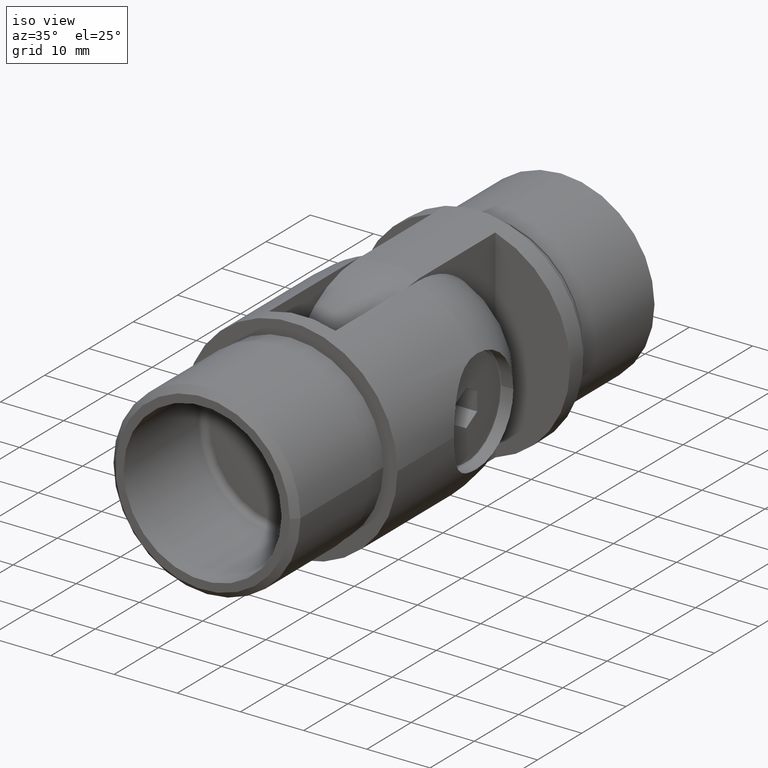
[diagram: clean part render]
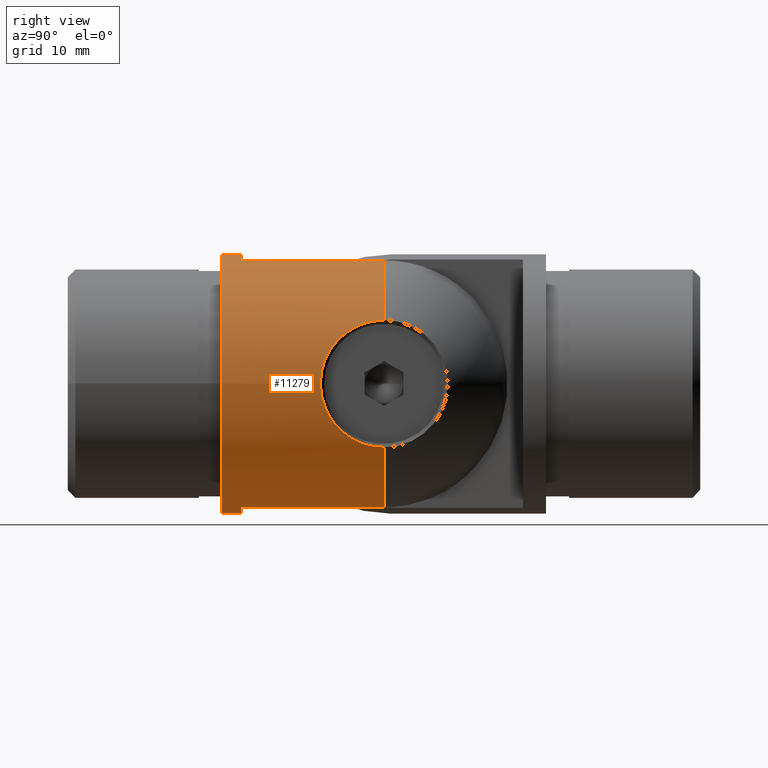
[diagram: tour spotlight — one face highlighted and labeled with its STEP entity id]
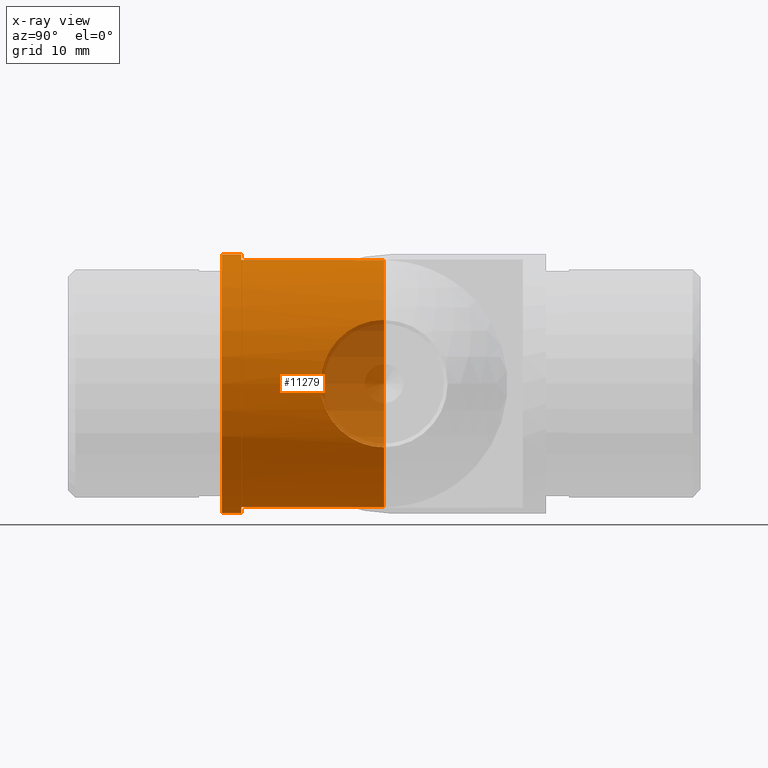
[diagram: x-ray of the same camera — body ghosted, this tour face saturated]
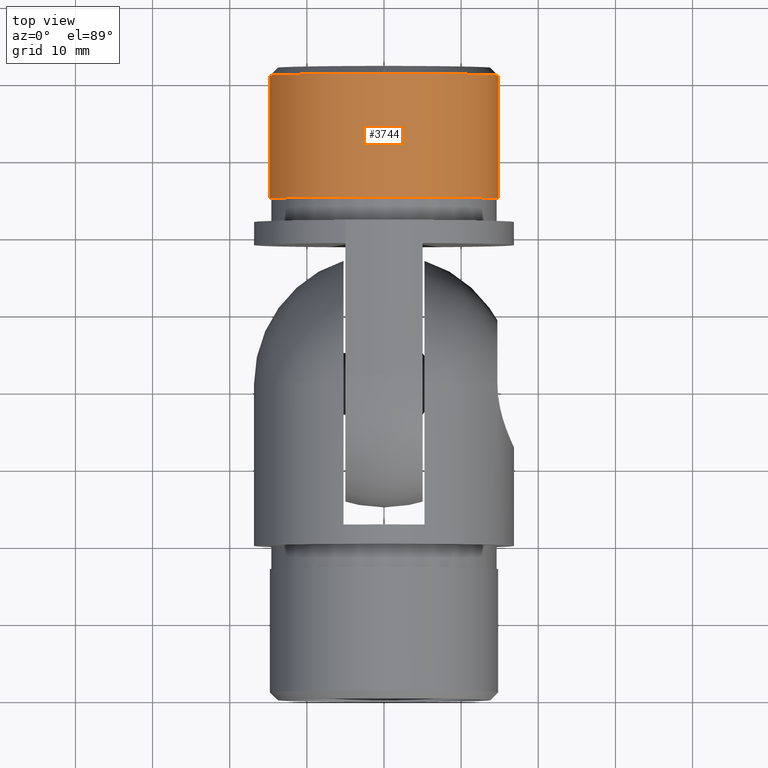
[diagram: tour spotlight — one face highlighted and labeled with its STEP entity id]
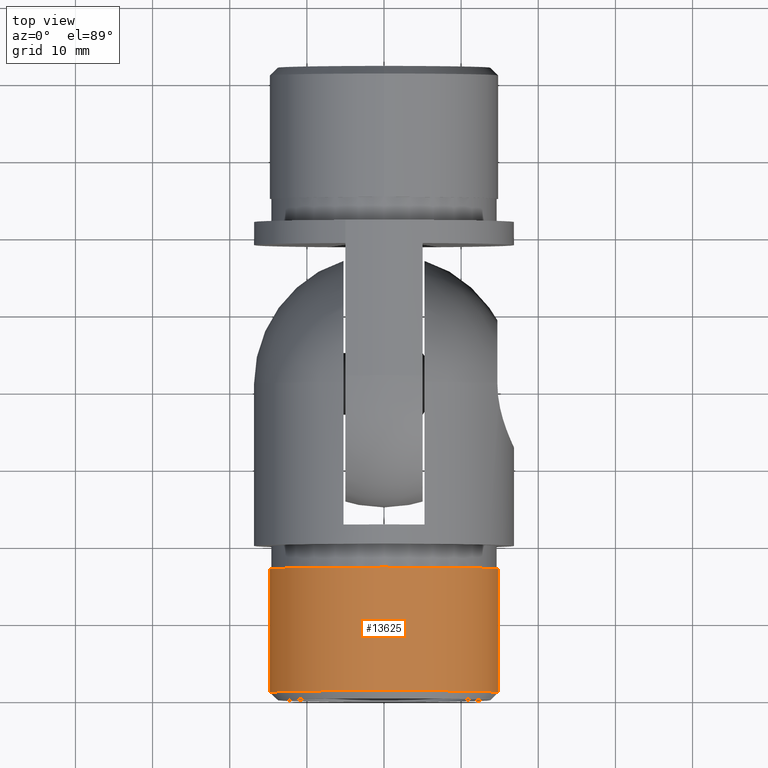
[diagram: tour spotlight — one face highlighted and labeled with its STEP entity id]
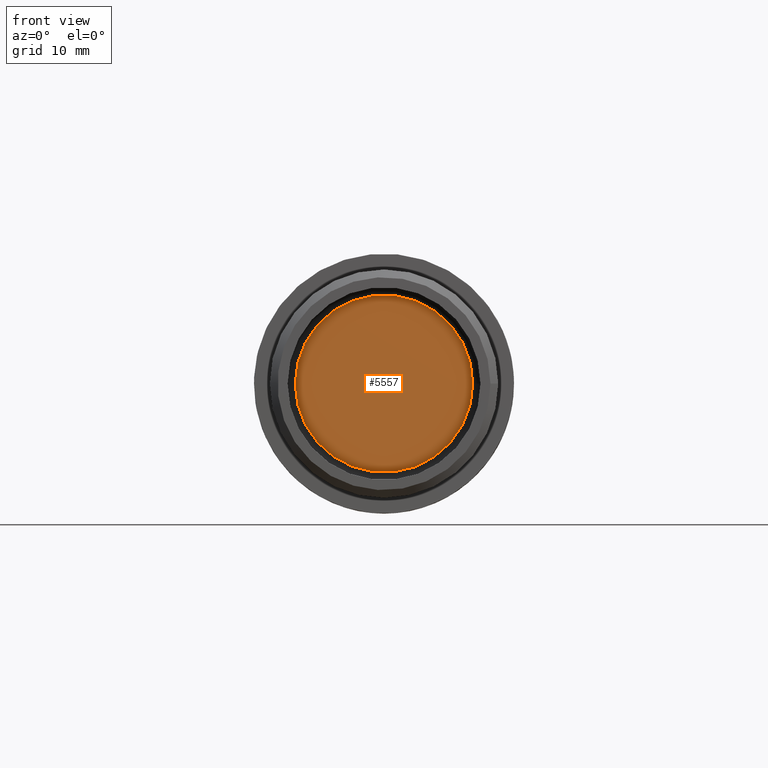
[diagram: tour spotlight — one face highlighted and labeled with its STEP entity id]
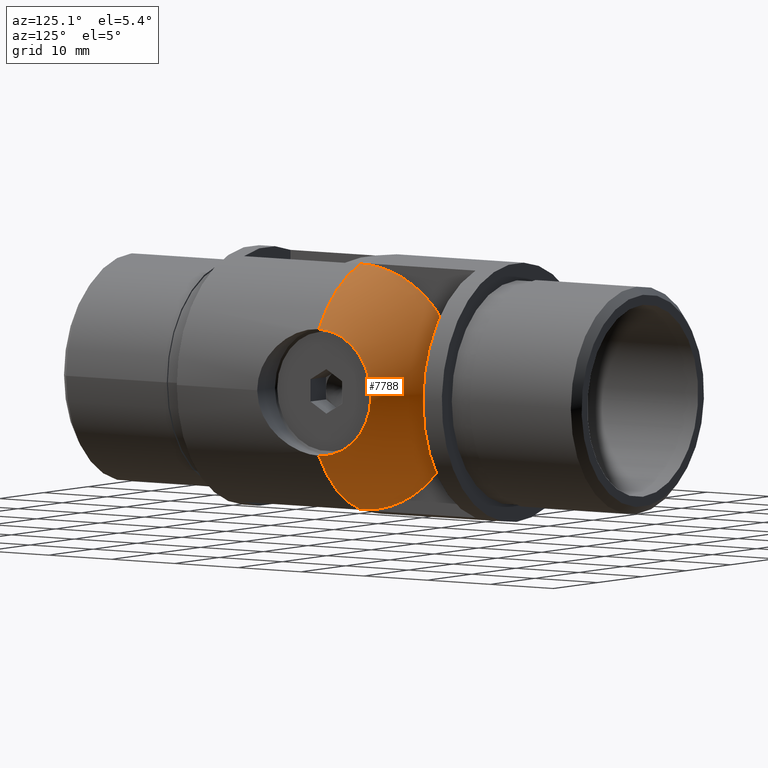
[diagram: tour spotlight — one face highlighted and labeled with its STEP entity id]
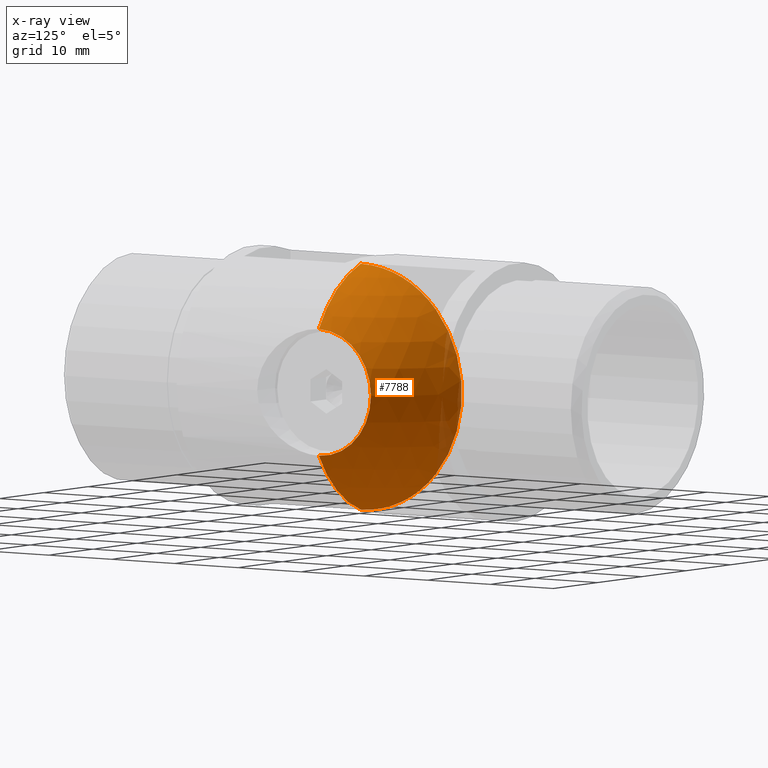
[diagram: x-ray of the same camera — body ghosted, this tour face saturated]
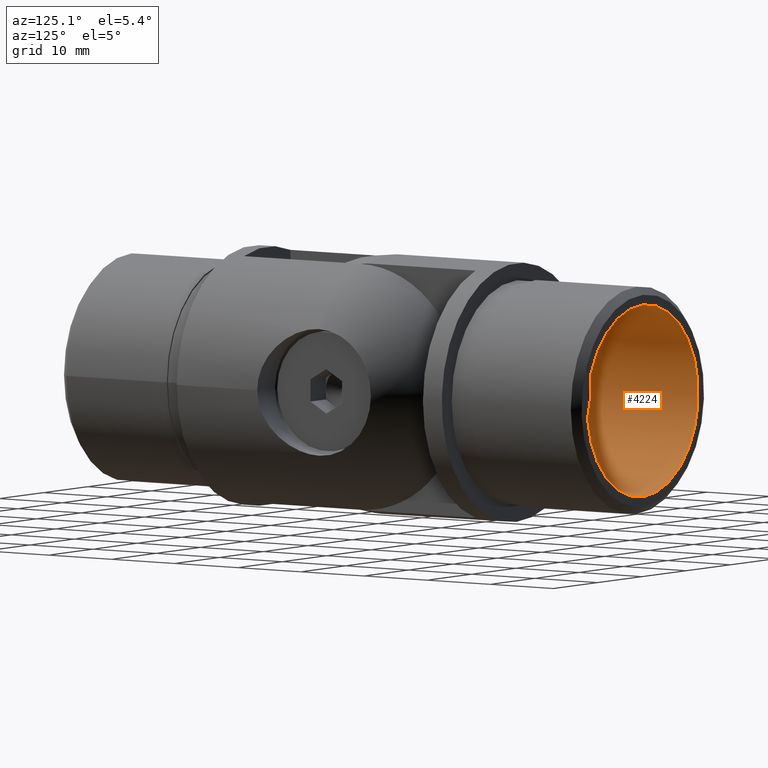
[diagram: tour spotlight — one face highlighted and labeled with its STEP entity id]
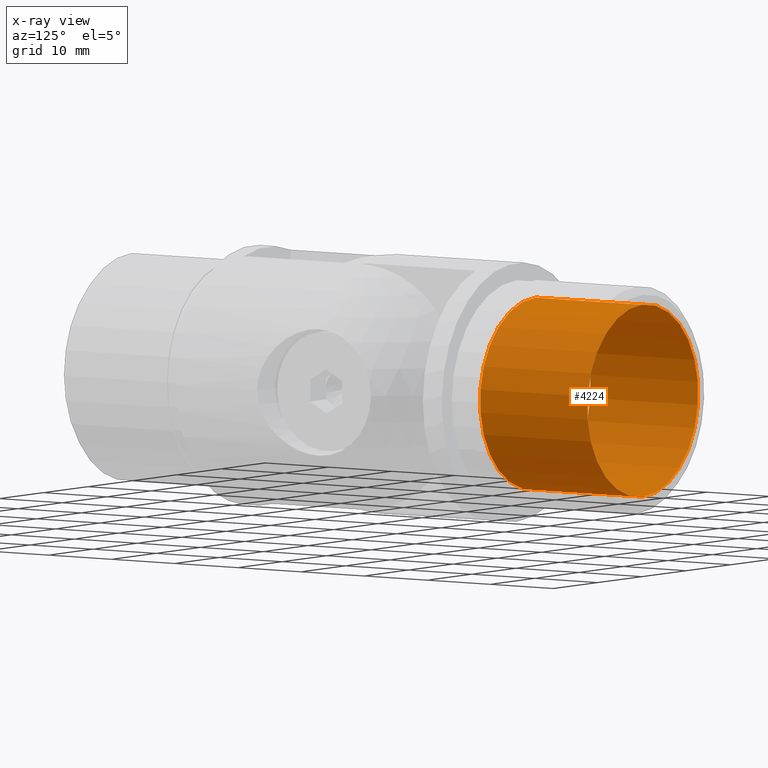
[diagram: x-ray of the same camera — body ghosted, this tour face saturated]
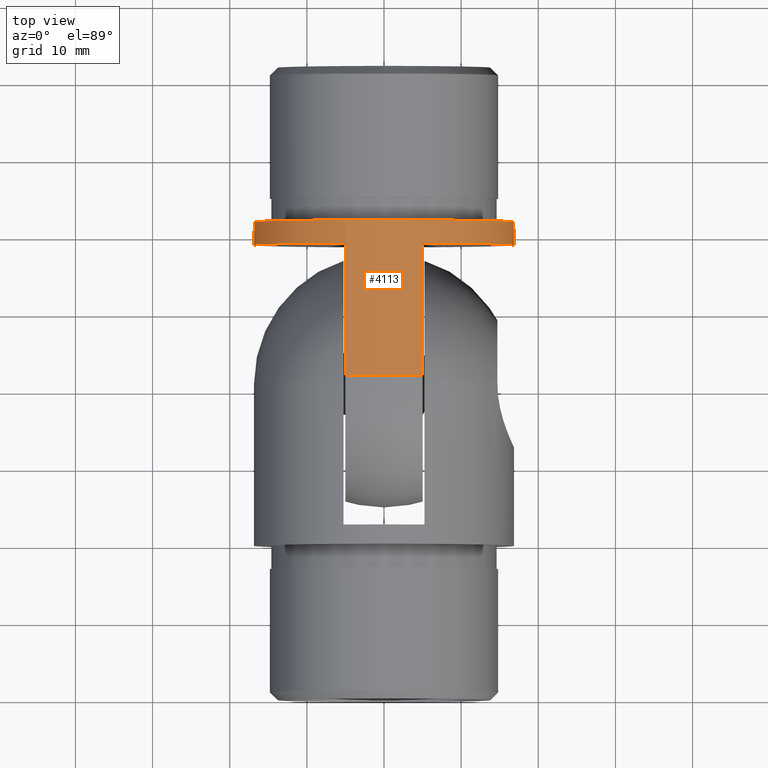
[diagram: tour spotlight — one face highlighted and labeled with its STEP entity id]
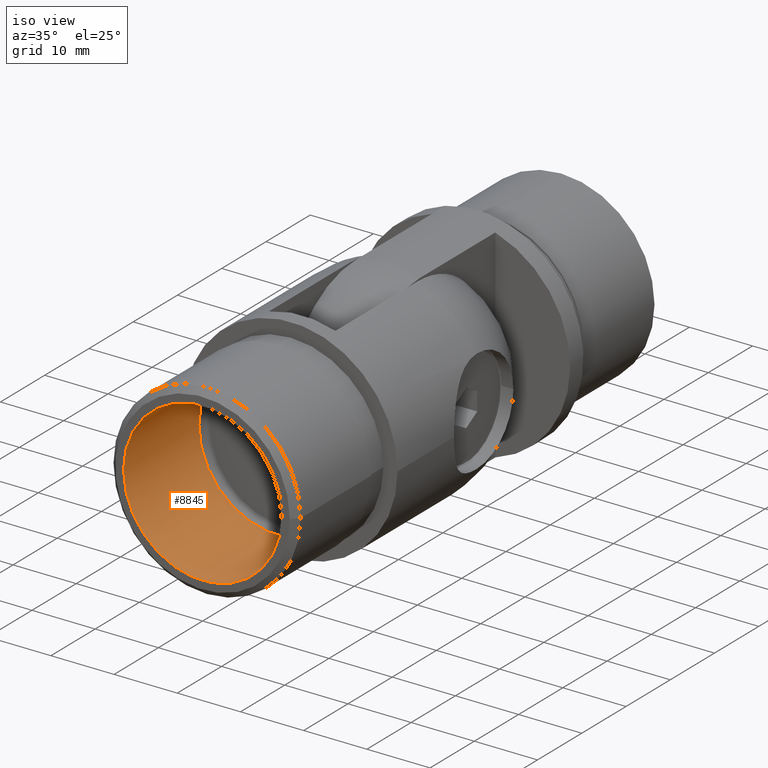
[diagram: tour spotlight — one face highlighted and labeled with its STEP entity id]
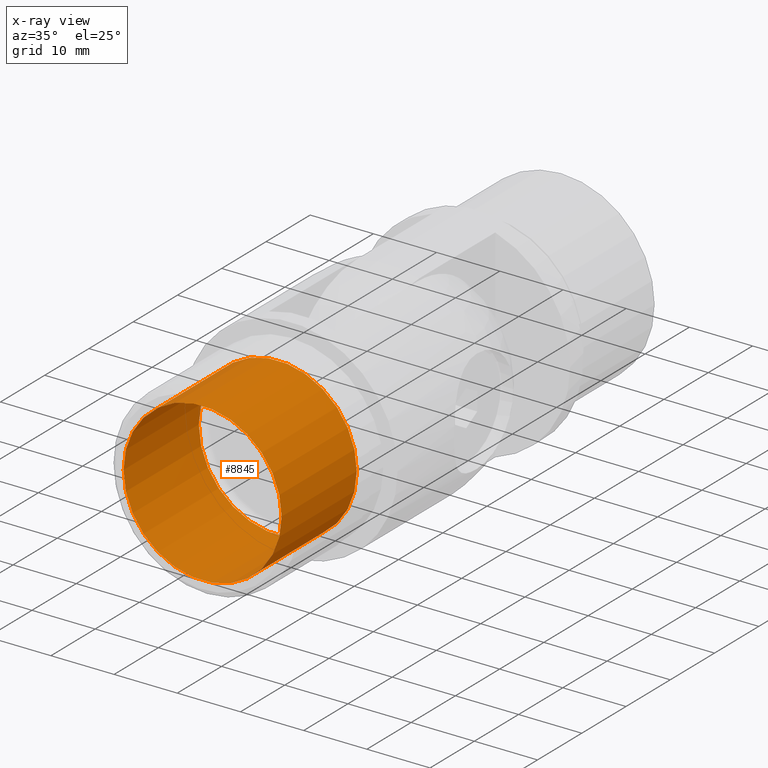
[diagram: x-ray of the same camera — body ghosted, this tour face saturated]
A machine part: a face-by-face anatomy tour. The part has 318 B-rep faces; the first image is the clean iso view, then the 8 largest visible faces are spotlighted one at a time (largest first), each with its STEP entity span.

Face 1 — right view, entity #11279. An x-ray twin of the same camera follows (body ghosted, this face saturated) — the face is partly hidden behind the body. In plain terms, the highlighted cylindrical surface (bore or boss wall) has radius 16.85 mm, axis along (0, -1, 0).
Definition (entity closure, byte-faithful):
#243 = ORIENTED_EDGE ( 'NONE', *, *, #8175, .T. ) ;
#338 = VERTEX_POINT ( 'NONE', #5186 ) ;
#429 = CARTESIAN_POINT ( 'NONE',  ( 5.250000000000005300, 2.499999999999998700, 16.01124604770034000 ) ) ;
#519 = VERTEX_POINT ( 'NONE', #6442 ) ;
#637 = CARTESIAN_POINT ( 'NONE',  ( 16.14508363682496000, 14.30506703001841900, 4.828273553303899000 ) ) ;
#689 = CARTESIAN_POINT ( 'NONE',  ( 14.72362379266294500, 19.90208983419495700, 8.194656244266893100 ) ) ;
#714 = EDGE_CURVE ( 'NONE', #14027, #14027, #6880, .T. ) ;
#743 = CARTESIAN_POINT ( 'NONE',  ( 16.74556580712604200, 12.96531382043688300, -1.892206595810190100 ) ) ;
#795 = CARTESIAN_POINT ( 'NONE',  ( 16.81707660874949200, 12.81741923378706200, -1.087967247931676200 ) ) ;
#848 = CARTESIAN_POINT ( 'NONE',  ( 14.81350262179996200, 19.08906397046251200, -8.030350724648151600 ) ) ;
#939 = FACE_OUTER_BOUND ( 'NONE', #3668, .T. ) ;
#1079 = CARTESIAN_POINT ( 'NONE',  ( -1.426867208517787700E-015, 20.99999999999999600, 0.0000000000000000000 ) ) ;
#1729 = EDGE_CURVE ( 'NONE', #519, #6750, #3152, .T. ) ;
#1778 = VECTOR ( 'NONE', #8897, 1000.000000000000000 ) ;
#1795 = CIRCLE ( 'NONE', #2910, 16.84999999999999800 ) ;
#1816 = CARTESIAN_POINT ( 'NONE',  ( 14.69217478796110200, 20.44500301982686000, -8.250000000000000000 ) ) ;
#1872 = CARTESIAN_POINT ( 'NONE',  ( 15.26207138894459300, 16.84659199073418600, 7.148309923767489400 ) ) ;
#1978 = CARTESIAN_POINT ( 'NONE',  ( 15.33008752875653400, 16.61860376696483900, -6.995549522746566500 ) ) ;
#2029 = CARTESIAN_POINT ( 'NONE',  ( 15.87537261602767600, 14.98354541385479000, 5.651083098628559400 ) ) ;
#2164 = VECTOR ( 'NONE', #5998, 1000.000000000000000 ) ;
#2165 = CARTESIAN_POINT ( 'NONE',  ( -1.426867208517787700E-015, 20.99999999999999600, 0.0000000000000000000 ) ) ;
#2297 = CARTESIAN_POINT ( 'NONE',  ( -5.249999999999995600, -6.830473686658673000E-016, 16.01124604770034300 ) ) ;
#2479 = EDGE_CURVE ( 'NONE', #519, #8321, #3731, .T. ) ;
#2767 = DIRECTION ( 'NONE',  ( -6.794605754846609300E-017, 1.000000000000000000, 0.0000000000000000000 ) ) ;
#2830 = DIRECTION ( 'NONE',  ( 6.794605754846609300E-017, -1.000000000000000000, -0.0000000000000000000 ) ) ;
#2910 = AXIS2_PLACEMENT_3D ( 'NONE', #14015, #4459, #5682 ) ;
#2995 = CARTESIAN_POINT ( 'NONE',  ( -5.249999999999997300, 20.99999999999999600, -16.01124604770034300 ) ) ;
#3021 = CARTESIAN_POINT ( 'NONE',  ( 15.66902844082933700, 15.54291722700255500, -6.209943191397799800 ) ) ;
#3070 = CARTESIAN_POINT ( 'NONE',  ( 16.33467248971762900, 13.85611221559087400, 4.161103127307805000 ) ) ;
#3111 = CARTESIAN_POINT ( 'NONE',  ( -5.249999999999995600, 2.500000000000000900, -16.01124604770034300 ) ) ;
#3152 = CIRCLE ( 'NONE', #4920, 16.84999999999999800 ) ;
#3170 = CARTESIAN_POINT ( 'NONE',  ( 15.94399454587038400, 14.80523360369779500, 5.455112903733488700 ) ) ;
#3225 = CARTESIAN_POINT ( 'NONE',  ( 15.13918043811689900, 17.31621232909035200, 7.401490295323931400 ) ) ;
#3245 = DIRECTION ( 'NONE',  ( 6.794605754846609300E-017, -1.000000000000000000, -0.0000000000000000000 ) ) ;
#3668 = EDGE_LOOP ( 'NONE', ( #4583, #6660, #9772, #13776, #5337, #243, #4243, #13108, #6877, #6192 ) ) ;
#3731 = B_SPLINE_CURVE_WITH_KNOTS ( 'NONE', 3,
 ( #4206, #11366, #689, #7792, #8952, #3225, #1872, #12510, #10168, #10275, #10221, #2029, #3170, #7894, #637, #3070, #4368, #5424, #11466, #12464, #12666, #11313, #6614, #7841, #6760, #795, #13710, #743, #4259, #13870, #9005, #5531, #13658, #12563, #15083, #6663, #7747, #3021, #9059, #1978, #12613, #14921, #8903, #5475, #14869, #7946, #848, #13817, #1816, #15030 ),
 .UNSPECIFIED., .F., .F.,
 ( 4, 2, 2, 2, 2, 2, 2, 2, 2, 2, 2, 2, 2, 2, 2, 2, 2, 2, 2, 2, 2, 2, 2, 2, 4 ),
 ( 0.0000000000000000000, 0.001637828408831435700, 0.003275656817662871500, 0.004913485226494308100, 0.005732399430910029900, 0.006551313635325756000, 0.007370227839741483800, 0.008189142044157209100, 0.009826970452988661300, 0.01064588465740438900, 0.01146479886182011700, 0.01310262727065156800, 0.01392154147506729500, 0.01474045567948302100, 0.01555936988389874600, 0.01637828408831447400, 0.01801611249714592900, 0.01883502670156165400, 0.01965394090597737500, 0.02129176931480882300, 0.02211068351922454800, 0.02292959772364027200, 0.02374851192805599700, 0.02456742613247172100, 0.02620525454130317700 ),
 .UNSPECIFIED. ) ;
#3761 = CIRCLE ( 'NONE', #10766, 16.84999999999999800 ) ;
#3795 = CARTESIAN_POINT ( 'NONE',  ( 5.250000000000002700, 20.99999999999999600, 16.01124604770034300 ) ) ;
#4160 = CIRCLE ( 'NONE', #6413, 16.84999999999999800 ) ;
#4171 = CARTESIAN_POINT ( 'NONE',  ( -1.698651438711652400E-016, 2.500000000000000000, 0.0000000000000000000 ) ) ;
#4206 = CARTESIAN_POINT ( 'NONE',  ( 14.69217478796110200, 21.00000000000000000, 8.250000000000000000 ) ) ;
#4243 = ORIENTED_EDGE ( 'NONE', *, *, #5906, .F. ) ;
#4259 = CARTESIAN_POINT ( 'NONE',  ( 16.71360502869672600, 13.03196908292749600, -2.155681036067158100 ) ) ;
#4368 = CARTESIAN_POINT ( 'NONE',  ( 16.44837418353470000, 13.60248827198209100, 3.691603051759056300 ) ) ;
#4459 = DIRECTION ( 'NONE',  ( 2.065146995210485200E-016, 1.000000000000000000, 0.0000000000000000000 ) ) ;
#4469 = VERTEX_POINT ( 'NONE', #14808 ) ;
#4583 = ORIENTED_EDGE ( 'NONE', *, *, #2479, .F. ) ;
#4714 = EDGE_CURVE ( 'NONE', #338, #11908, #14247, .T. ) ;
#4829 = EDGE_CURVE ( 'NONE', #7336, #9884, #1795, .T. ) ;
#4920 = AXIS2_PLACEMENT_3D ( 'NONE', #1079, #2830, #7707 ) ;
#5186 = CARTESIAN_POINT ( 'NONE',  ( 5.250000000000003600, 20.99999999999999600, -16.01124604770034000 ) ) ;
#5302 = VECTOR ( 'NONE', #2767, 1000.000000000000000 ) ;
#5337 = ORIENTED_EDGE ( 'NONE', *, *, #5620, .F. ) ;
#5424 = CARTESIAN_POINT ( 'NONE',  ( 16.59190388204815000, 13.29027782262728900, 2.948700927901516600 ) ) ;
#5475 = CARTESIAN_POINT ( 'NONE',  ( 14.98277987353109200, 18.05351684945395300, -7.710529492109106500 ) ) ;
#5529 = LINE ( 'NONE', #6708, #1778 ) ;
#5531 = CARTESIAN_POINT ( 'NONE',  ( 16.44987921291543000, 13.59910766411260900, -3.685718501326534600 ) ) ;
#5620 = EDGE_CURVE ( 'NONE', #4469, #7336, #9003, .T. ) ;
#5657 = DIRECTION ( 'NONE',  ( 1.000000000000000000, 6.794605754846609300E-017, 0.0000000000000000000 ) ) ;
#5682 = DIRECTION ( 'NONE',  ( 1.000000000000000000, -2.059018962583747500E-016, -3.552713678800500900E-015 ) ) ;
#5906 = EDGE_CURVE ( 'NONE', #9036, #11126, #5529, .T. ) ;
#5959 = CARTESIAN_POINT ( 'NONE',  ( 14.69217478796110200, 21.00000000000000000, -8.250000000000000000 ) ) ;
#5998 = DIRECTION ( 'NONE',  ( 6.794605754846609300E-017, -1.000000000000000000, -0.0000000000000000000 ) ) ;
#6192 = ORIENTED_EDGE ( 'NONE', *, *, #10015, .T. ) ;
#6413 = AXIS2_PLACEMENT_3D ( 'NONE', #2165, #8066, #9198 ) ;
#6442 = CARTESIAN_POINT ( 'NONE',  ( 14.69217478796110200, 21.00000000000000000, 8.250000000000000000 ) ) ;
#6530 = DIRECTION ( 'NONE',  ( 2.065146995210485200E-016, 1.000000000000000000, 0.0000000000000000000 ) ) ;
#6533 = AXIS2_PLACEMENT_3D ( 'NONE', #4171, #6530, #7597 ) ;
#6614 = CARTESIAN_POINT ( 'NONE',  ( 16.84959096598405300, 12.75083542170556200, 0.5612549930229452400 ) ) ;
#6660 = ORIENTED_EDGE ( 'NONE', *, *, #1729, .T. ) ;
#6663 = CARTESIAN_POINT ( 'NONE',  ( 15.94524760969761900, 14.80199112452499800, -5.451502447346642000 ) ) ;
#6708 = CARTESIAN_POINT ( 'NONE',  ( -5.249999999999995600, -6.830473686658673000E-016, -16.01124604770034300 ) ) ;
#6732 = CARTESIAN_POINT ( 'NONE',  ( 1.385340774887239400E-031, -2.038883233069221400E-015, 0.0000000000000000000 ) ) ;
#6750 = VERTEX_POINT ( 'NONE', #3795 ) ;
#6760 = CARTESIAN_POINT ( 'NONE',  ( 16.84357805807327700, 12.76309013467695100, -0.5400153689607175600 ) ) ;
#6779 = DIRECTION ( 'NONE',  ( 1.000000000000000000, 6.794605754846609300E-017, 0.0000000000000000000 ) ) ;
#6877 = ORIENTED_EDGE ( 'NONE', *, *, #4714, .F. ) ;
#6880 = CIRCLE ( 'NONE', #12865, 16.85000000000000100 ) ;
#7324 = ORIENTED_EDGE ( 'NONE', *, *, #714, .F. ) ;
#7336 = VERTEX_POINT ( 'NONE', #7725 ) ;
#7369 = CARTESIAN_POINT ( 'NONE',  ( 16.85000000000000100, -8.939921633775678800E-016, 0.0000000000000000000 ) ) ;
#7597 = DIRECTION ( 'NONE',  ( 1.000000000000000000, -2.059018962583747500E-016, 0.0000000000000000000 ) ) ;
#7707 = DIRECTION ( 'NONE',  ( 1.000000000000000000, 0.0000000000000000000, 0.0000000000000000000 ) ) ;
#7709 = LINE ( 'NONE', #14563, #5302 ) ;
#7725 = CARTESIAN_POINT ( 'NONE',  ( -5.249999999999995600, 2.500000000000000900, 16.01124604770034000 ) ) ;
#7747 = CARTESIAN_POINT ( 'NONE',  ( 15.87639477653012300, 14.98084423459652500, -5.648223223257339500 ) ) ;
#7783 = CYLINDRICAL_SURFACE ( 'NONE', #12971, 16.84999999999999800 ) ;
#7792 = CARTESIAN_POINT ( 'NONE',  ( 14.84114353536187100, 18.83670376935539900, 7.979846308818193500 ) ) ;
#7841 = CARTESIAN_POINT ( 'NONE',  ( 16.85019765389073100, 12.74959630655025900, -0.2620014252942214400 ) ) ;
#7885 = DIRECTION ( 'NONE',  ( 6.794605754846609300E-017, -1.000000000000000000, -0.0000000000000000000 ) ) ;
#7894 = CARTESIAN_POINT ( 'NONE',  ( 16.07867756871403500, 14.46639142703832100, 5.044338064856103400 ) ) ;
#7946 = CARTESIAN_POINT ( 'NONE',  ( 14.85038835546344400, 18.82305210855528800, -7.962200484465319600 ) ) ;
#8066 = DIRECTION ( 'NONE',  ( 6.794605754846609300E-017, -1.000000000000000000, -0.0000000000000000000 ) ) ;
#8175 = EDGE_CURVE ( 'NONE', #4469, #11126, #4160, .T. ) ;
#8321 = VERTEX_POINT ( 'NONE', #5959 ) ;
#8897 = DIRECTION ( 'NONE',  ( -6.794605754846609300E-017, 1.000000000000000000, 0.0000000000000000000 ) ) ;
#8903 = CARTESIAN_POINT ( 'NONE',  ( 15.08752438641074000, 17.56031072212880100, -7.503503560126699100 ) ) ;
#8952 = CARTESIAN_POINT ( 'NONE',  ( 14.92862976339005800, 18.30936924144909700, 7.817471222669132300 ) ) ;
#8954 = DIRECTION ( 'NONE',  ( 1.000000000000000000, 0.0000000000000000000, 0.0000000000000000000 ) ) ;
#9003 = LINE ( 'NONE', #2297, #2164 ) ;
#9005 = CARTESIAN_POINT ( 'NONE',  ( 16.59458062862042000, 13.28451060840878000, -2.933859319709748900 ) ) ;
#9036 = VERTEX_POINT ( 'NONE', #3111 ) ;
#9059 = CARTESIAN_POINT ( 'NONE',  ( 15.52961268324930400, 15.95133014172954400, -6.546817315796193500 ) ) ;
#9198 = DIRECTION ( 'NONE',  ( 1.000000000000000000, 0.0000000000000000000, 0.0000000000000000000 ) ) ;
#9772 = ORIENTED_EDGE ( 'NONE', *, *, #14990, .F. ) ;
#9884 = VERTEX_POINT ( 'NONE', #429 ) ;
#10015 = EDGE_CURVE ( 'NONE', #338, #8321, #3761, .T. ) ;
#10022 = FACE_OUTER_BOUND ( 'NONE', #12969, .T. ) ;
#10125 = CARTESIAN_POINT ( 'NONE',  ( -1.426867208517787700E-015, 20.99999999999999600, 0.0000000000000000000 ) ) ;
#10168 = CARTESIAN_POINT ( 'NONE',  ( 15.52998717325846000, 15.96434156769944200, 6.540278331228091900 ) ) ;
#10221 = CARTESIAN_POINT ( 'NONE',  ( 15.73731336658604200, 15.35789914238021200, 6.024878744605500100 ) ) ;
#10275 = CARTESIAN_POINT ( 'NONE',  ( 15.66787196674609600, 15.55394030407527100, 6.202703465840976100 ) ) ;
#10766 = AXIS2_PLACEMENT_3D ( 'NONE', #10125, #12566, #8954 ) ;
#11073 = VECTOR ( 'NONE', #7885, 1000.000000000000000 ) ;
#11126 = VERTEX_POINT ( 'NONE', #2995 ) ;
#11151 = EDGE_CURVE ( 'NONE', #11908, #9036, #11906, .T. ) ;
#11279 = ADVANCED_FACE ( 'NONE', ( #939, #10022 ), #7783, .T. ) ;
#11313 = CARTESIAN_POINT ( 'NONE',  ( 16.82244540187153700, 12.80587554992903800, 1.102981719791081800 ) ) ;
#11366 = CARTESIAN_POINT ( 'NONE',  ( 14.69217478796110200, 20.44533342624250200, 8.250000000000001800 ) ) ;
#11430 = DIRECTION ( 'NONE',  ( 6.794605754846609300E-017, -1.000000000000000000, -0.0000000000000000000 ) ) ;
#11466 = CARTESIAN_POINT ( 'NONE',  ( 16.63524338477341800, 13.19766927376262800, 2.694581229776435500 ) ) ;
#11906 = CIRCLE ( 'NONE', #6533, 16.84999999999999800 ) ;
#11908 = VERTEX_POINT ( 'NONE', #13238 ) ;
#12464 = CARTESIAN_POINT ( 'NONE',  ( 16.71144158363809500, 13.03650063764123600, 2.172512524972612700 ) ) ;
#12510 = CARTESIAN_POINT ( 'NONE',  ( 15.46121840739243900, 16.17980618712910300, 6.700738005680996400 ) ) ;
#12563 = CARTESIAN_POINT ( 'NONE',  ( 16.14682481448291500, 14.30088100967024500, -4.822418188355829500 ) ) ;
#12566 = DIRECTION ( 'NONE',  ( 6.794605754846609300E-017, -1.000000000000000000, -0.0000000000000000000 ) ) ;
#12613 = CARTESIAN_POINT ( 'NONE',  ( 15.26557367161050900, 16.84917157699745300, -7.134739606478869500 ) ) ;
#12666 = CARTESIAN_POINT ( 'NONE',  ( 16.74410259901466300, 12.96836110140618100, 1.905180476216290900 ) ) ;
#12865 = AXIS2_PLACEMENT_3D ( 'NONE', #6732, #11430, #5657 ) ;
#12969 = EDGE_LOOP ( 'NONE', ( #7324 ) ) ;
#12971 = AXIS2_PLACEMENT_3D ( 'NONE', #13573, #3245, #6779 ) ;
#13108 = ORIENTED_EDGE ( 'NONE', *, *, #11151, .F. ) ;
#13238 = CARTESIAN_POINT ( 'NONE',  ( 5.250000000000005300, 2.499999999999998700, -16.01124604770034000 ) ) ;
#13573 = CARTESIAN_POINT ( 'NONE',  ( 0.0000000000000000000, 0.0000000000000000000, 0.0000000000000000000 ) ) ;
#13658 = CARTESIAN_POINT ( 'NONE',  ( 16.33569514374712000, 13.85381847016013500, -4.156950716872032100 ) ) ;
#13710 = CARTESIAN_POINT ( 'NONE',  ( 16.79730058516660000, 12.85803987041745900, -1.358349385680435400 ) ) ;
#13776 = ORIENTED_EDGE ( 'NONE', *, *, #4829, .F. ) ;
#13817 = CARTESIAN_POINT ( 'NONE',  ( 14.72369132227997000, 19.89802337346813500, -8.194570433765493400 ) ) ;
#13870 = CARTESIAN_POINT ( 'NONE',  ( 16.63825640477658800, 13.19125491316076400, -2.675813445187658500 ) ) ;
#14015 = CARTESIAN_POINT ( 'NONE',  ( -1.698651438711652400E-016, 2.500000000000000000, 0.0000000000000000000 ) ) ;
#14027 = VERTEX_POINT ( 'NONE', #7369 ) ;
#14247 = LINE ( 'NONE', #15023, #11073 ) ;
#14563 = CARTESIAN_POINT ( 'NONE',  ( 5.250000000000005300, 6.830473686658685800E-016, 16.01124604770034000 ) ) ;
#14808 = CARTESIAN_POINT ( 'NONE',  ( -5.249999999999996400, 20.99999999999999600, 16.01124604770034700 ) ) ;
#14869 = CARTESIAN_POINT ( 'NONE',  ( 14.93495857248701600, 18.30592216595641700, -7.802415222288567900 ) ) ;
#14921 = CARTESIAN_POINT ( 'NONE',  ( 15.14444985502281900, 17.31951110786370100, -7.388361615698395100 ) ) ;
#14990 = EDGE_CURVE ( 'NONE', #9884, #6750, #7709, .T. ) ;
#15023 = CARTESIAN_POINT ( 'NONE',  ( 5.250000000000005300, 6.830473686658685800E-016, -16.01124604770034000 ) ) ;
#15030 = CARTESIAN_POINT ( 'NONE',  ( 14.69217478796110200, 21.00000000000000000, -8.250000000000000000 ) ) ;
#15083 = CARTESIAN_POINT ( 'NONE',  ( 16.08063945266033600, 14.46154774488981700, -5.038138055029638600 ) ) ;

Face 2 — top view, entity #3744. In plain terms, the highlighted cylindrical surface (bore or boss wall) has radius 14.8 mm, axis along (-0, -1, 0).
Definition (entity closure, byte-faithful):
#6 = ORIENTED_EDGE ( 'NONE', *, *, #5602, .T. ) ;
#491 = CIRCLE ( 'NONE', #1519, 14.79999999999999900 ) ;
#918 = DIRECTION ( 'NONE',  ( 0.0000000000000000000, 1.000000000000000000, 0.0000000000000000000 ) ) ;
#1519 = AXIS2_PLACEMENT_3D ( 'NONE', #12986, #5946, #5900 ) ;
#2875 = DIRECTION ( 'NONE',  ( 0.0000000000000000000, 0.0000000000000000000, 1.000000000000000000 ) ) ;
#3309 = FACE_OUTER_BOUND ( 'NONE', #9409, .T. ) ;
#3494 = CARTESIAN_POINT ( 'NONE',  ( 0.0000000000000000000, -19.00000000000000400, 0.0000000000000000000 ) ) ;
#3744 = ADVANCED_FACE ( 'NONE', ( #13711, #3309 ), #5170, .T. ) ;
#3794 = CIRCLE ( 'NONE', #8982, 14.79999999999999900 ) ;
#3804 = CARTESIAN_POINT ( 'NONE',  ( 0.0000000000000000000, -20.00000000000000000, 0.0000000000000000000 ) ) ;
#4645 = DIRECTION ( 'NONE',  ( 0.0000000000000000000, 0.0000000000000000000, -1.000000000000000000 ) ) ;
#5106 = VERTEX_POINT ( 'NONE', #14748 ) ;
#5170 = CYLINDRICAL_SURFACE ( 'NONE', #12272, 14.79999999999999900 ) ;
#5602 = EDGE_CURVE ( 'NONE', #9524, #9524, #491, .T. ) ;
#5900 = DIRECTION ( 'NONE',  ( 0.0000000000000000000, 0.0000000000000000000, -1.000000000000000000 ) ) ;
#5946 = DIRECTION ( 'NONE',  ( 0.0000000000000000000, -1.000000000000000000, 0.0000000000000000000 ) ) ;
#8545 = CARTESIAN_POINT ( 'NONE',  ( 0.0000000000000000000, -3.000000000000000000, -14.79999999999999900 ) ) ;
#8982 = AXIS2_PLACEMENT_3D ( 'NONE', #3494, #918, #4645 ) ;
#9409 = EDGE_LOOP ( 'NONE', ( #6 ) ) ;
#9524 = VERTEX_POINT ( 'NONE', #8545 ) ;
#10950 = DIRECTION ( 'NONE',  ( -0.0000000000000000000, 1.000000000000000000, -0.0000000000000000000 ) ) ;
#11346 = EDGE_LOOP ( 'NONE', ( #14797 ) ) ;
#12272 = AXIS2_PLACEMENT_3D ( 'NONE', #3804, #10950, #2875 ) ;
#12986 = CARTESIAN_POINT ( 'NONE',  ( 0.0000000000000000000, -3.000000000000000000, 0.0000000000000000000 ) ) ;
#13439 = EDGE_CURVE ( 'NONE', #5106, #5106, #3794, .T. ) ;
#13711 = FACE_OUTER_BOUND ( 'NONE', #11346, .T. ) ;
#14748 = CARTESIAN_POINT ( 'NONE',  ( 0.0000000000000000000, -19.00000000000000400, -14.79999999999999900 ) ) ;
#14797 = ORIENTED_EDGE ( 'NONE', *, *, #13439, .T. ) ;

Face 3 — top view, entity #13625. In plain terms, the highlighted cylindrical surface (bore or boss wall) has radius 14.8 mm, axis along (-0, 1, 0).
Definition (entity closure, byte-faithful):
#1480 = DIRECTION ( 'NONE',  ( -1.000000000000000000, 0.0000000000000000000, 0.0000000000000000000 ) ) ;
#1626 = CARTESIAN_POINT ( 'NONE',  ( 1.358921150969322700E-015, -20.00000000000000000, 0.0000000000000000000 ) ) ;
#2030 = CARTESIAN_POINT ( 'NONE',  ( 1.290975093420855900E-015, -18.99999999999999300, 0.0000000000000000000 ) ) ;
#2459 = CIRCLE ( 'NONE', #8875, 14.80000000000000100 ) ;
#2811 = CARTESIAN_POINT ( 'NONE',  ( 2.038381726453983900E-016, -3.000000000000000000, 0.0000000000000000000 ) ) ;
#3054 = CARTESIAN_POINT ( 'NONE',  ( 14.80000000000000200, -18.99999999999999300, 0.0000000000000000000 ) ) ;
#3311 = EDGE_LOOP ( 'NONE', ( #3655 ) ) ;
#3655 = ORIENTED_EDGE ( 'NONE', *, *, #5822, .T. ) ;
#5297 = CYLINDRICAL_SURFACE ( 'NONE', #10101, 14.80000000000000100 ) ;
#5329 = CIRCLE ( 'NONE', #11043, 14.80000000000000100 ) ;
#5822 = EDGE_CURVE ( 'NONE', #11204, #11204, #5329, .T. ) ;
#6863 = DIRECTION ( 'NONE',  ( -6.794605754846611700E-017, 1.000000000000000000, 0.0000000000000000000 ) ) ;
#8875 = AXIS2_PLACEMENT_3D ( 'NONE', #2030, #6863, #13925 ) ;
#9914 = DIRECTION ( 'NONE',  ( -6.794605754846613000E-017, 1.000000000000000000, -0.0000000000000000000 ) ) ;
#10101 = AXIS2_PLACEMENT_3D ( 'NONE', #1626, #9914, #1480 ) ;
#10492 = EDGE_CURVE ( 'NONE', #14960, #14960, #2459, .T. ) ;
#10835 = FACE_OUTER_BOUND ( 'NONE', #3311, .T. ) ;
#11033 = CARTESIAN_POINT ( 'NONE',  ( 14.80000000000000100, -2.999999999999999100, 0.0000000000000000000 ) ) ;
#11043 = AXIS2_PLACEMENT_3D ( 'NONE', #2811, #13494, #12352 ) ;
#11204 = VERTEX_POINT ( 'NONE', #11033 ) ;
#11955 = EDGE_LOOP ( 'NONE', ( #12186 ) ) ;
#12186 = ORIENTED_EDGE ( 'NONE', *, *, #10492, .T. ) ;
#12352 = DIRECTION ( 'NONE',  ( 1.000000000000000000, 5.860552283705429100E-017, 0.0000000000000000000 ) ) ;
#12899 = FACE_OUTER_BOUND ( 'NONE', #11955, .T. ) ;
#13494 = DIRECTION ( 'NONE',  ( 6.794605754846613000E-017, -1.000000000000000000, 0.0000000000000000000 ) ) ;
#13625 = ADVANCED_FACE ( 'NONE', ( #12899, #10835 ), #5297, .T. ) ;
#13925 = DIRECTION ( 'NONE',  ( 1.000000000000000000, 0.0000000000000000000, 0.0000000000000000000 ) ) ;
#14960 = VERTEX_POINT ( 'NONE', #3054 ) ;

Face 4 — front view, entity #5557. In plain terms, the highlighted planar face has unit normal (0, -1, 0).
Definition (entity closure, byte-faithful):
#336 = EDGE_LOOP ( 'NONE', ( #13745 ) ) ;
#2289 = DIRECTION ( 'NONE',  ( 6.794605754846613000E-017, -1.000000000000000000, 0.0000000000000000000 ) ) ;
#2636 = AXIS2_PLACEMENT_3D ( 'NONE', #4732, #2289, #4679 ) ;
#3441 = PLANE ( 'NONE',  #10543 ) ;
#4346 = CIRCLE ( 'NONE', #2636, 11.50000000000000000 ) ;
#4679 = DIRECTION ( 'NONE',  ( 1.000000000000000000, 7.542275982507857100E-017, 0.0000000000000000000 ) ) ;
#4732 = CARTESIAN_POINT ( 'NONE',  ( 1.358921150969323800E-016, -2.000000000000001800, 0.0000000000000000000 ) ) ;
#5557 = ADVANCED_FACE ( 'NONE', ( #10495 ), #3441, .T. ) ;
#8199 = DIRECTION ( 'NONE',  ( 1.000000000000000000, 6.794605754846613000E-017, 0.0000000000000000000 ) ) ;
#8837 = EDGE_CURVE ( 'NONE', #10460, #10460, #4346, .T. ) ;
#9489 = CARTESIAN_POINT ( 'NONE',  ( 1.358921150969323300E-016, -2.000000000000001800, 0.0000000000000000000 ) ) ;
#10460 = VERTEX_POINT ( 'NONE', #12088 ) ;
#10495 = FACE_OUTER_BOUND ( 'NONE', #336, .T. ) ;
#10543 = AXIS2_PLACEMENT_3D ( 'NONE', #9489, #14134, #8199 ) ;
#12088 = CARTESIAN_POINT ( 'NONE',  ( 11.50000000000000000, -2.000000000000000900, 0.0000000000000000000 ) ) ;
#13745 = ORIENTED_EDGE ( 'NONE', *, *, #8837, .T. ) ;
#14134 = DIRECTION ( 'NONE',  ( 6.794605754846613000E-017, -1.000000000000000000, 0.0000000000000000000 ) ) ;

Face 5 — auxiliary view, entity #7788. An x-ray twin of the same camera follows (body ghosted, this face saturated) — the face is partly hidden behind the body. In plain terms, the highlighted spherical surface has radius 16.85 mm.
Definition (entity closure, byte-faithful):
#275 = EDGE_LOOP ( 'NONE', ( #14275, #10513, #1445, #2358 ) ) ;
#338 = VERTEX_POINT ( 'NONE', #5186 ) ;
#519 = VERTEX_POINT ( 'NONE', #6442 ) ;
#1079 = CARTESIAN_POINT ( 'NONE',  ( -1.426867208517787700E-015, 20.99999999999999600, 0.0000000000000000000 ) ) ;
#1115 = EDGE_CURVE ( 'NONE', #6750, #338, #6865, .T. ) ;
#1445 = ORIENTED_EDGE ( 'NONE', *, *, #1115, .F. ) ;
#1729 = EDGE_CURVE ( 'NONE', #519, #6750, #3152, .T. ) ;
#2131 = FACE_OUTER_BOUND ( 'NONE', #275, .T. ) ;
#2358 = ORIENTED_EDGE ( 'NONE', *, *, #1729, .F. ) ;
#2830 = DIRECTION ( 'NONE',  ( 6.794605754846609300E-017, -1.000000000000000000, -0.0000000000000000000 ) ) ;
#3152 = CIRCLE ( 'NONE', #4920, 16.84999999999999800 ) ;
#3761 = CIRCLE ( 'NONE', #10766, 16.84999999999999800 ) ;
#3795 = CARTESIAN_POINT ( 'NONE',  ( 5.250000000000002700, 20.99999999999999600, 16.01124604770034300 ) ) ;
#4220 = DIRECTION ( 'NONE',  ( 0.0000000000000000000, -0.0000000000000000000, 1.000000000000000000 ) ) ;
#4383 = CIRCLE ( 'NONE', #8293, 8.250000000000000000 ) ;
#4920 = AXIS2_PLACEMENT_3D ( 'NONE', #1079, #2830, #7707 ) ;
#5186 = CARTESIAN_POINT ( 'NONE',  ( 5.250000000000003600, 20.99999999999999600, -16.01124604770034000 ) ) ;
#5741 = CARTESIAN_POINT ( 'NONE',  ( 5.250000000000002700, 20.99999999999999300, 0.0000000000000000000 ) ) ;
#5959 = CARTESIAN_POINT ( 'NONE',  ( 14.69217478796110200, 21.00000000000000000, -8.250000000000000000 ) ) ;
#6442 = CARTESIAN_POINT ( 'NONE',  ( 14.69217478796110200, 21.00000000000000000, 8.250000000000000000 ) ) ;
#6750 = VERTEX_POINT ( 'NONE', #3795 ) ;
#6865 = CIRCLE ( 'NONE', #13969, 16.01124604770034700 ) ;
#7576 = AXIS2_PLACEMENT_3D ( 'NONE', #10135, #4220, #12523 ) ;
#7707 = DIRECTION ( 'NONE',  ( 1.000000000000000000, 0.0000000000000000000, 0.0000000000000000000 ) ) ;
#7788 = ADVANCED_FACE ( 'NONE', ( #2131 ), #8421, .T. ) ;
#7945 = DIRECTION ( 'NONE',  ( -1.083440645911478500E-016, 1.000000000000000000, 0.0000000000000000000 ) ) ;
#8293 = AXIS2_PLACEMENT_3D ( 'NONE', #14747, #13434, #8687 ) ;
#8321 = VERTEX_POINT ( 'NONE', #5959 ) ;
#8421 = SPHERICAL_SURFACE ( 'NONE', #7576, 16.85000000000000100 ) ;
#8687 = DIRECTION ( 'NONE',  ( 2.102695122396129900E-016, -1.000000000000000000, 8.881784197001252300E-016 ) ) ;
#8954 = DIRECTION ( 'NONE',  ( 1.000000000000000000, 0.0000000000000000000, 0.0000000000000000000 ) ) ;
#10015 = EDGE_CURVE ( 'NONE', #338, #8321, #3761, .T. ) ;
#10125 = CARTESIAN_POINT ( 'NONE',  ( -1.426867208517787700E-015, 20.99999999999999600, 0.0000000000000000000 ) ) ;
#10135 = CARTESIAN_POINT ( 'NONE',  ( -2.571758278209440900E-015, 20.99999999999999300, 0.0000000000000000000 ) ) ;
#10513 = ORIENTED_EDGE ( 'NONE', *, *, #10015, .F. ) ;
#10766 = AXIS2_PLACEMENT_3D ( 'NONE', #10125, #12566, #8954 ) ;
#12523 = DIRECTION ( 'NONE',  ( 1.000000000000000000, 0.0000000000000000000, 0.0000000000000000000 ) ) ;
#12566 = DIRECTION ( 'NONE',  ( 6.794605754846609300E-017, -1.000000000000000000, -0.0000000000000000000 ) ) ;
#12763 = EDGE_CURVE ( 'NONE', #8321, #519, #4383, .T. ) ;
#13434 = DIRECTION ( 'NONE',  ( 1.000000000000000000, 2.361425045662067900E-016, -0.0000000000000000000 ) ) ;
#13969 = AXIS2_PLACEMENT_3D ( 'NONE', #5741, #15236, #7945 ) ;
#14275 = ORIENTED_EDGE ( 'NONE', *, *, #12763, .F. ) ;
#14747 = CARTESIAN_POINT ( 'NONE',  ( 14.69217478796110400, 20.99999999999999300, 0.0000000000000000000 ) ) ;
#15236 = DIRECTION ( 'NONE',  ( -1.000000000000000000, -1.301042606982605300E-016, -0.0000000000000000000 ) ) ;

Face 6 — auxiliary view, entity #4224. An x-ray twin of the same camera follows (body ghosted, this face saturated) — the face is partly hidden behind the body. In plain terms, the highlighted cylindrical surface (bore or boss wall) has radius 12.5 mm, axis along (-0, -1, 0).
Definition (entity closure, byte-faithful):
#14 = EDGE_LOOP ( 'NONE', ( #4134 ) ) ;
#118 = DIRECTION ( 'NONE',  ( 0.0000000000000000000, 0.0000000000000000000, -1.000000000000000000 ) ) ;
#596 = EDGE_CURVE ( 'NONE', #6232, #6232, #15256, .T. ) ;
#1459 = CARTESIAN_POINT ( 'NONE',  ( 0.0000000000000000000, -20.00000000000000000, 0.0000000000000000000 ) ) ;
#1469 = DIRECTION ( 'NONE',  ( -0.0000000000000000000, 1.000000000000000000, -0.0000000000000000000 ) ) ;
#1554 = CARTESIAN_POINT ( 'NONE',  ( 0.0000000000000000000, -20.00000000000000000, -12.50000000000000000 ) ) ;
#1619 = FACE_OUTER_BOUND ( 'NONE', #10411, .T. ) ;
#2188 = CYLINDRICAL_SURFACE ( 'NONE', #11136, 12.50000000000000000 ) ;
#2196 = DIRECTION ( 'NONE',  ( -0.0000000000000000000, 1.000000000000000000, -0.0000000000000000000 ) ) ;
#3473 = FACE_OUTER_BOUND ( 'NONE', #14, .T. ) ;
#3852 = CARTESIAN_POINT ( 'NONE',  ( 0.0000000000000000000, -3.000000000000001800, 0.0000000000000000000 ) ) ;
#4134 = ORIENTED_EDGE ( 'NONE', *, *, #8040, .T. ) ;
#4224 = ADVANCED_FACE ( 'NONE', ( #1619, #3473 ), #2188, .F. ) ;
#5055 = DIRECTION ( 'NONE',  ( 0.0000000000000000000, -1.000000000000000000, 0.0000000000000000000 ) ) ;
#5638 = AXIS2_PLACEMENT_3D ( 'NONE', #1459, #5055, #6253 ) ;
#5735 = AXIS2_PLACEMENT_3D ( 'NONE', #3852, #1469, #118 ) ;
#6232 = VERTEX_POINT ( 'NONE', #10981 ) ;
#6253 = DIRECTION ( 'NONE',  ( 0.0000000000000000000, 0.0000000000000000000, -1.000000000000000000 ) ) ;
#7130 = VERTEX_POINT ( 'NONE', #1554 ) ;
#7959 = ORIENTED_EDGE ( 'NONE', *, *, #596, .T. ) ;
#8040 = EDGE_CURVE ( 'NONE', #7130, #7130, #10831, .T. ) ;
#10385 = CARTESIAN_POINT ( 'NONE',  ( 0.0000000000000000000, -3.000000000000000000, 0.0000000000000000000 ) ) ;
#10411 = EDGE_LOOP ( 'NONE', ( #7959 ) ) ;
#10831 = CIRCLE ( 'NONE', #5638, 12.50000000000000000 ) ;
#10981 = CARTESIAN_POINT ( 'NONE',  ( 0.0000000000000000000, -3.000000000000001800, -12.50000000000000000 ) ) ;
#11136 = AXIS2_PLACEMENT_3D ( 'NONE', #10385, #2196, #15203 ) ;
#15203 = DIRECTION ( 'NONE',  ( 0.0000000000000000000, 0.0000000000000000000, 1.000000000000000000 ) ) ;
#15256 = CIRCLE ( 'NONE', #5735, 12.50000000000000000 ) ;

Face 7 — top view, entity #4113. In plain terms, the highlighted cylindrical surface (bore or boss wall) has radius 16.85 mm, axis along (0, 1, -0).
Definition (entity closure, byte-faithful):
#184 = ORIENTED_EDGE ( 'NONE', *, *, #9504, .F. ) ;
#194 = LINE ( 'NONE', #6635, #5029 ) ;
#341 = FACE_OUTER_BOUND ( 'NONE', #13739, .T. ) ;
#446 = DIRECTION ( 'NONE',  ( -0.0000000000000000000, -1.000000000000000000, 2.023001138165372000E-016 ) ) ;
#738 = CARTESIAN_POINT ( 'NONE',  ( 0.0000000000000000000, 3.000000000000000000, 0.0000000000000000000 ) ) ;
#759 = ORIENTED_EDGE ( 'NONE', *, *, #4757, .T. ) ;
#897 = CYLINDRICAL_SURFACE ( 'NONE', #5819, 16.85000000000000100 ) ;
#1348 = ORIENTED_EDGE ( 'NONE', *, *, #8865, .F. ) ;
#1433 = DIRECTION ( 'NONE',  ( 0.0000000000000000000, -1.000000000000000000, -4.046002276330743400E-016 ) ) ;
#1538 = CARTESIAN_POINT ( 'NONE',  ( -5.000000000000000900, 3.000000000000000000, -16.09106895144011400 ) ) ;
#1547 = LINE ( 'NONE', #8876, #6381 ) ;
#1740 = VERTEX_POINT ( 'NONE', #13385 ) ;
#1859 = VERTEX_POINT ( 'NONE', #1538 ) ;
#1895 = DIRECTION ( 'NONE',  ( 0.0000000000000000000, -1.000000000000000000, -4.046002276330743400E-016 ) ) ;
#1904 = EDGE_CURVE ( 'NONE', #12755, #13012, #194, .T. ) ;
#1973 = DIRECTION ( 'NONE',  ( 0.0000000000000000000, 1.000000000000000000, 0.0000000000000000000 ) ) ;
#2320 = CARTESIAN_POINT ( 'NONE',  ( 4.999999999999999100, 20.15000000000000900, -16.09106895144010400 ) ) ;
#2425 = AXIS2_PLACEMENT_3D ( 'NONE', #8339, #9482, #9533 ) ;
#2856 = ORIENTED_EDGE ( 'NONE', *, *, #11144, .T. ) ;
#2968 = DIRECTION ( 'NONE',  ( 0.0000000000000000000, 0.0000000000000000000, 1.000000000000000000 ) ) ;
#3049 = EDGE_CURVE ( 'NONE', #14101, #5766, #10365, .T. ) ;
#3183 = DIRECTION ( 'NONE',  ( -0.0000000000000000000, -1.000000000000000000, -0.0000000000000000000 ) ) ;
#3300 = DIRECTION ( 'NONE',  ( 0.0000000000000000000, 2.059018962583747500E-016, -1.000000000000000000 ) ) ;
#3555 = VERTEX_POINT ( 'NONE', #11648 ) ;
#4113 = ADVANCED_FACE ( 'NONE', ( #341, #5563 ), #897, .T. ) ;
#4268 = CIRCLE ( 'NONE', #12177, 16.84999999999999800 ) ;
#4270 = DIRECTION ( 'NONE',  ( 0.0000000000000000000, 0.0000000000000000000, -1.000000000000000000 ) ) ;
#4291 = VECTOR ( 'NONE', #1433, 1000.000000000000000 ) ;
#4527 = CIRCLE ( 'NONE', #2425, 16.84999999999999800 ) ;
#4539 = AXIS2_PLACEMENT_3D ( 'NONE', #9568, #5879, #5974 ) ;
#4667 = LINE ( 'NONE', #2320, #4291 ) ;
#4757 = EDGE_CURVE ( 'NONE', #1740, #1740, #8836, .T. ) ;
#4779 = VERTEX_POINT ( 'NONE', #6753 ) ;
#4841 = CARTESIAN_POINT ( 'NONE',  ( 5.000000000000000000, 3.000000000000000000, 16.09106895144011400 ) ) ;
#5029 = VECTOR ( 'NONE', #13626, 1000.000000000000000 ) ;
#5563 = FACE_OUTER_BOUND ( 'NONE', #13635, .T. ) ;
#5570 = VERTEX_POINT ( 'NONE', #11743 ) ;
#5766 = VERTEX_POINT ( 'NONE', #4841 ) ;
#5819 = AXIS2_PLACEMENT_3D ( 'NONE', #11377, #3183, #4270 ) ;
#5879 = DIRECTION ( 'NONE',  ( 0.0000000000000000000, 1.000000000000000000, 0.0000000000000000000 ) ) ;
#5883 = ORIENTED_EDGE ( 'NONE', *, *, #3049, .F. ) ;
#5972 = EDGE_CURVE ( 'NONE', #5766, #4779, #12368, .T. ) ;
#5974 = DIRECTION ( 'NONE',  ( 0.0000000000000000000, 0.0000000000000000000, 1.000000000000000000 ) ) ;
#6381 = VECTOR ( 'NONE', #1895, 1000.000000000000000 ) ;
#6605 = CARTESIAN_POINT ( 'NONE',  ( 0.0000000000000000000, 0.0000000000000000000, 0.0000000000000000000 ) ) ;
#6635 = CARTESIAN_POINT ( 'NONE',  ( -5.000000000000000000, 20.15000000000000600, 16.09106895144010700 ) ) ;
#6736 = ORIENTED_EDGE ( 'NONE', *, *, #13074, .F. ) ;
#6753 = CARTESIAN_POINT ( 'NONE',  ( 4.999999999999999100, 2.999999999999999100, -16.09106895144011100 ) ) ;
#7040 = ORIENTED_EDGE ( 'NONE', *, *, #5972, .F. ) ;
#7266 = CARTESIAN_POINT ( 'NONE',  ( -5.000000000000000000, 20.15000000000000600, 16.09106895144010700 ) ) ;
#7549 = CARTESIAN_POINT ( 'NONE',  ( 4.999999999999999100, 20.15000000000000600, 16.09106895144011100 ) ) ;
#7567 = CARTESIAN_POINT ( 'NONE',  ( 4.999999999999999100, 20.15000000000000600, 16.09106895144011100 ) ) ;
#7610 = ORIENTED_EDGE ( 'NONE', *, *, #1904, .T. ) ;
#8339 = CARTESIAN_POINT ( 'NONE',  ( 0.0000000000000000000, 20.15000000000000600, -3.469446951953614200E-015 ) ) ;
#8836 = CIRCLE ( 'NONE', #9450, 16.85000000000000100 ) ;
#8865 = EDGE_CURVE ( 'NONE', #12755, #14101, #4527, .T. ) ;
#8876 = CARTESIAN_POINT ( 'NONE',  ( -5.000000000000000000, 20.15000000000000900, -16.09106895144010000 ) ) ;
#8970 = DIRECTION ( 'NONE',  ( 0.0000000000000000000, -1.000000000000000000, -1.224646799147353200E-016 ) ) ;
#9080 = CARTESIAN_POINT ( 'NONE',  ( 0.0000000000000000000, 20.15000000000000600, 1.040834085586084300E-014 ) ) ;
#9164 = DIRECTION ( 'NONE',  ( 0.0000000000000000000, 1.000000000000000000, 0.0000000000000000000 ) ) ;
#9450 = AXIS2_PLACEMENT_3D ( 'NONE', #6605, #9164, #10114 ) ;
#9482 = DIRECTION ( 'NONE',  ( 0.0000000000000000000, 1.000000000000000000, 0.0000000000000000000 ) ) ;
#9504 = EDGE_CURVE ( 'NONE', #3555, #1859, #1547, .T. ) ;
#9533 = DIRECTION ( 'NONE',  ( 0.0000000000000000000, 0.0000000000000000000, 1.000000000000000000 ) ) ;
#9568 = CARTESIAN_POINT ( 'NONE',  ( 0.0000000000000000000, 3.000000000000000000, 0.0000000000000000000 ) ) ;
#10114 = DIRECTION ( 'NONE',  ( 0.0000000000000000000, 0.0000000000000000000, 1.000000000000000000 ) ) ;
#10365 = LINE ( 'NONE', #7549, #12791 ) ;
#10954 = AXIS2_PLACEMENT_3D ( 'NONE', #738, #1973, #2968 ) ;
#11144 = EDGE_CURVE ( 'NONE', #5570, #4779, #4667, .T. ) ;
#11312 = EDGE_CURVE ( 'NONE', #3555, #5570, #4268, .T. ) ;
#11377 = CARTESIAN_POINT ( 'NONE',  ( 0.0000000000000000000, 3.000000000000000000, 0.0000000000000000000 ) ) ;
#11505 = CARTESIAN_POINT ( 'NONE',  ( -5.000000000000000900, 3.000000000000000000, 16.09106895144011400 ) ) ;
#11648 = CARTESIAN_POINT ( 'NONE',  ( -5.000000000000000000, 20.15000000000000900, -16.09106895144010000 ) ) ;
#11743 = CARTESIAN_POINT ( 'NONE',  ( 4.999999999999999100, 20.15000000000000900, -16.09106895144010400 ) ) ;
#12177 = AXIS2_PLACEMENT_3D ( 'NONE', #9080, #8970, #3300 ) ;
#12368 = CIRCLE ( 'NONE', #10954, 16.85000000000000100 ) ;
#12755 = VERTEX_POINT ( 'NONE', #7266 ) ;
#12767 = ORIENTED_EDGE ( 'NONE', *, *, #11312, .T. ) ;
#12791 = VECTOR ( 'NONE', #446, 1000.000000000000000 ) ;
#13012 = VERTEX_POINT ( 'NONE', #11505 ) ;
#13074 = EDGE_CURVE ( 'NONE', #1859, #13012, #13286, .T. ) ;
#13286 = CIRCLE ( 'NONE', #4539, 16.85000000000000100 ) ;
#13385 = CARTESIAN_POINT ( 'NONE',  ( 0.0000000000000000000, 0.0000000000000000000, 16.85000000000000100 ) ) ;
#13626 = DIRECTION ( 'NONE',  ( -0.0000000000000000000, -1.000000000000000000, 2.023001138165372000E-016 ) ) ;
#13635 = EDGE_LOOP ( 'NONE', ( #759 ) ) ;
#13739 = EDGE_LOOP ( 'NONE', ( #7040, #5883, #1348, #7610, #6736, #184, #12767, #2856 ) ) ;
#14101 = VERTEX_POINT ( 'NONE', #7567 ) ;

Face 8 — iso view, entity #8845. An x-ray twin of the same camera follows (body ghosted, this face saturated) — the face is partly hidden behind the body. In plain terms, the highlighted cylindrical surface (bore or boss wall) has radius 12.5 mm, axis along (-0, 1, 0).
Definition (entity closure, byte-faithful):
#1 = DIRECTION ( 'NONE',  ( -6.794605754846613000E-017, 1.000000000000000000, -0.0000000000000000000 ) ) ;
#1182 = VERTEX_POINT ( 'NONE', #9746 ) ;
#1606 = CARTESIAN_POINT ( 'NONE',  ( 12.50000000000000200, -20.00000000000000000, 0.0000000000000000000 ) ) ;
#1689 = DIRECTION ( 'NONE',  ( -6.794605754846613000E-017, 1.000000000000000000, -0.0000000000000000000 ) ) ;
#2466 = DIRECTION ( 'NONE',  ( 6.794605754846613000E-017, -1.000000000000000000, 0.0000000000000000000 ) ) ;
#2893 = DIRECTION ( 'NONE',  ( 1.000000000000000000, 6.938893903907228400E-017, 0.0000000000000000000 ) ) ;
#3960 = CIRCLE ( 'NONE', #10369, 12.50000000000000000 ) ;
#3974 = EDGE_LOOP ( 'NONE', ( #12046 ) ) ;
#5836 = AXIS2_PLACEMENT_3D ( 'NONE', #10040, #1689, #2893 ) ;
#6210 = CIRCLE ( 'NONE', #5836, 12.50000000000000000 ) ;
#6624 = AXIS2_PLACEMENT_3D ( 'NONE', #7111, #1, #14330 ) ;
#7111 = CARTESIAN_POINT ( 'NONE',  ( 2.038381726453983900E-016, -3.000000000000000000, 0.0000000000000000000 ) ) ;
#7494 = FACE_OUTER_BOUND ( 'NONE', #3974, .T. ) ;
#8054 = VERTEX_POINT ( 'NONE', #1606 ) ;
#8438 = EDGE_CURVE ( 'NONE', #8054, #8054, #3960, .T. ) ;
#8845 = ADVANCED_FACE ( 'NONE', ( #13073, #7494 ), #12702, .F. ) ;
#9370 = EDGE_CURVE ( 'NONE', #1182, #1182, #6210, .T. ) ;
#9746 = CARTESIAN_POINT ( 'NONE',  ( 12.50000000000000000, -3.000000000000000900, 0.0000000000000000000 ) ) ;
#10040 = CARTESIAN_POINT ( 'NONE',  ( 2.038381726453985100E-016, -3.000000000000001800, 0.0000000000000000000 ) ) ;
#10369 = AXIS2_PLACEMENT_3D ( 'NONE', #14411, #2466, #12167 ) ;
#11078 = EDGE_LOOP ( 'NONE', ( #11782 ) ) ;
#11782 = ORIENTED_EDGE ( 'NONE', *, *, #9370, .T. ) ;
#12046 = ORIENTED_EDGE ( 'NONE', *, *, #8438, .T. ) ;
#12167 = DIRECTION ( 'NONE',  ( 1.000000000000000000, 0.0000000000000000000, 0.0000000000000000000 ) ) ;
#12702 = CYLINDRICAL_SURFACE ( 'NONE', #6624, 12.50000000000000000 ) ;
#13073 = FACE_OUTER_BOUND ( 'NONE', #11078, .T. ) ;
#14330 = DIRECTION ( 'NONE',  ( -1.000000000000000000, -6.938893903907228400E-017, 0.0000000000000000000 ) ) ;
#14411 = CARTESIAN_POINT ( 'NONE',  ( 1.358921150969322700E-015, -20.00000000000000000, 0.0000000000000000000 ) ) ;